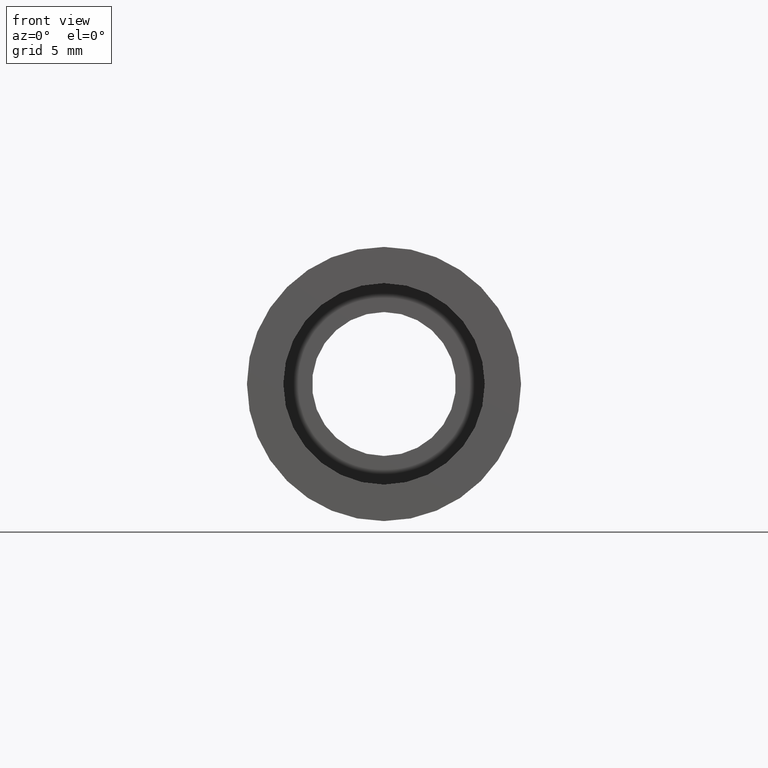
[diagram: clean part render]
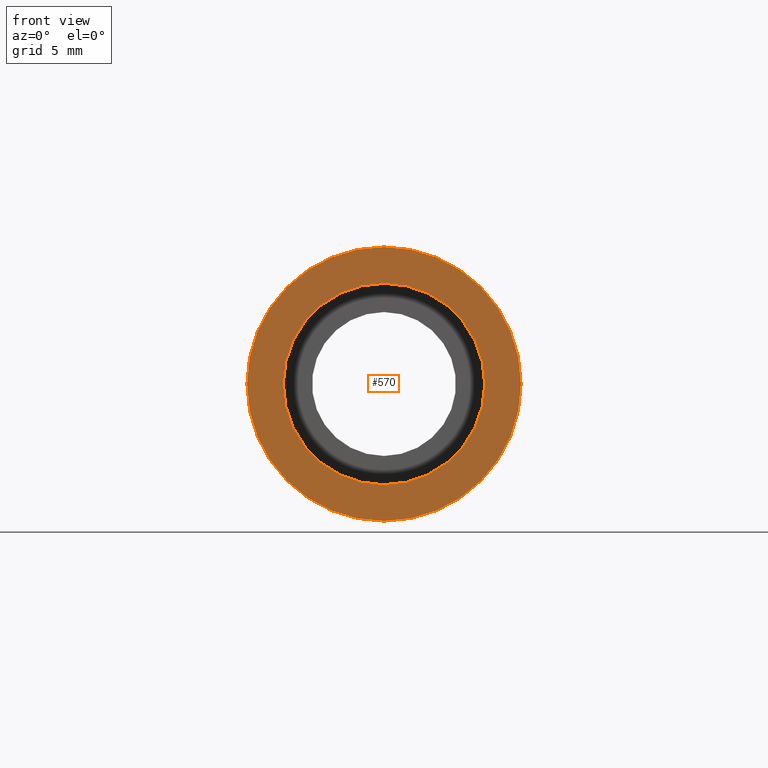
[diagram: same view with one face highlighted and labeled with its STEP entity id]
A machine part, front view. The second image highlights one B-rep face of the part: STEP entity #570.
In plain terms, the highlighted planar face has unit normal (-0, 1, 0).
Its self-contained STEP definition (entity closure, byte-faithful):
#16 = VERTEX_POINT ( 'NONE', #64 ) ;
#36 = DIRECTION ( 'NONE',  ( -0.0000000000000000000, 1.000000000000000000, -0.0000000000000000000 ) ) ;
#38 = AXIS2_PLACEMENT_3D ( 'NONE', #608, #36, #116 ) ;
#64 = CARTESIAN_POINT ( 'NONE',  ( 0.0000000000000000000, -2.775557561562891400E-014, 9.525000000000019900 ) ) ;
#65 = CIRCLE ( 'NONE', #87, 9.525000000000019900 ) ;
#80 = FACE_BOUND ( 'NONE', #362, .T. ) ;
#81 = EDGE_CURVE ( 'NONE', #343, #503, #493, .T. ) ;
#84 = DIRECTION ( 'NONE',  ( -0.0000000000000000000, 1.000000000000000000, 0.0000000000000000000 ) ) ;
#87 = AXIS2_PLACEMENT_3D ( 'NONE', #229, #611, #233 ) ;
#99 = CARTESIAN_POINT ( 'NONE',  ( 0.0000000000000000000, -2.775557561562891400E-014, 7.000000000000019500 ) ) ;
#109 = EDGE_CURVE ( 'NONE', #16, #186, #486, .T. ) ;
#116 = DIRECTION ( 'NONE',  ( 0.0000000000000000000, 0.0000000000000000000, 1.000000000000000000 ) ) ;
#124 = CARTESIAN_POINT ( 'NONE',  ( 0.0000000000000000000, -2.775557561562891400E-014, 0.0000000000000000000 ) ) ;
#131 = ORIENTED_EDGE ( 'NONE', *, *, #194, .T. ) ;
#160 = EDGE_CURVE ( 'NONE', #186, #16, #65, .T. ) ;
#165 = DIRECTION ( 'NONE',  ( -0.0000000000000000000, 1.000000000000000000, -0.0000000000000000000 ) ) ;
#171 = CARTESIAN_POINT ( 'NONE',  ( 7.000000000000019500, -1.650046791174882700E-014, 0.0000000000000000000 ) ) ;
#177 = ORIENTED_EDGE ( 'NONE', *, *, #109, .F. ) ;
#186 = VERTEX_POINT ( 'NONE', #320 ) ;
#191 = AXIS2_PLACEMENT_3D ( 'NONE', #171, #84, #566 ) ;
#193 = FACE_OUTER_BOUND ( 'NONE', #456, .T. ) ;
#194 = EDGE_CURVE ( 'NONE', #503, #343, #515, .T. ) ;
#229 = CARTESIAN_POINT ( 'NONE',  ( 0.0000000000000000000, -2.775557561562891400E-014, 0.0000000000000000000 ) ) ;
#233 = DIRECTION ( 'NONE',  ( 0.0000000000000000000, 0.0000000000000000000, 1.000000000000000000 ) ) ;
#272 = AXIS2_PLACEMENT_3D ( 'NONE', #124, #575, #281 ) ;
#281 = DIRECTION ( 'NONE',  ( 0.0000000000000000000, 0.0000000000000000000, 1.000000000000000000 ) ) ;
#320 = CARTESIAN_POINT ( 'NONE',  ( 1.166476076187856400E-015, -2.775557561562891400E-014, -9.525000000000019900 ) ) ;
#343 = VERTEX_POINT ( 'NONE', #99 ) ;
#362 = EDGE_LOOP ( 'NONE', ( #527, #131 ) ) ;
#409 = DIRECTION ( 'NONE',  ( 0.0000000000000000000, 0.0000000000000000000, 1.000000000000000000 ) ) ;
#431 = ORIENTED_EDGE ( 'NONE', *, *, #160, .F. ) ;
#456 = EDGE_LOOP ( 'NONE', ( #177, #431 ) ) ;
#477 = AXIS2_PLACEMENT_3D ( 'NONE', #559, #165, #409 ) ;
#486 = CIRCLE ( 'NONE', #38, 9.525000000000019900 ) ;
#493 = CIRCLE ( 'NONE', #477, 7.000000000000019500 ) ;
#503 = VERTEX_POINT ( 'NONE', #610 ) ;
#515 = CIRCLE ( 'NONE', #272, 7.000000000000019500 ) ;
#527 = ORIENTED_EDGE ( 'NONE', *, *, #81, .T. ) ;
#559 = CARTESIAN_POINT ( 'NONE',  ( 0.0000000000000000000, -2.775557561562891400E-014, 0.0000000000000000000 ) ) ;
#566 = DIRECTION ( 'NONE',  ( 0.0000000000000000000, 0.0000000000000000000, 1.000000000000000000 ) ) ;
#570 = ADVANCED_FACE ( 'NONE', ( #193, #80 ), #613, .F. ) ;
#575 = DIRECTION ( 'NONE',  ( -0.0000000000000000000, 1.000000000000000000, -0.0000000000000000000 ) ) ;
#608 = CARTESIAN_POINT ( 'NONE',  ( 0.0000000000000000000, -2.775557561562891400E-014, 0.0000000000000000000 ) ) ;
#610 = CARTESIAN_POINT ( 'NONE',  ( 8.572527594031495900E-016, -2.775557561562891400E-014, -7.000000000000019500 ) ) ;
#611 = DIRECTION ( 'NONE',  ( -0.0000000000000000000, 1.000000000000000000, -0.0000000000000000000 ) ) ;
#613 = PLANE ( 'NONE',  #191 ) ;